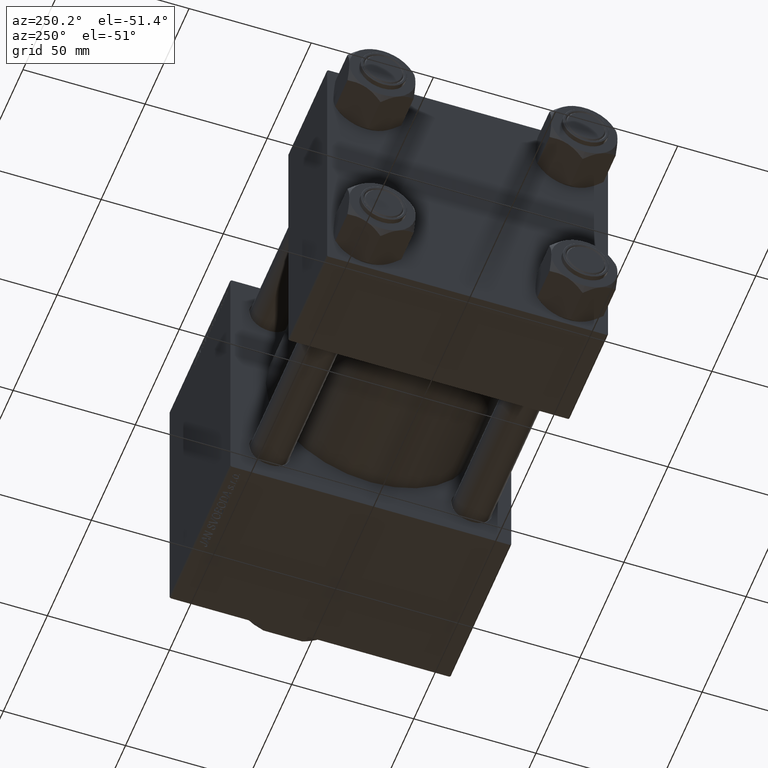
[diagram: clean part render]
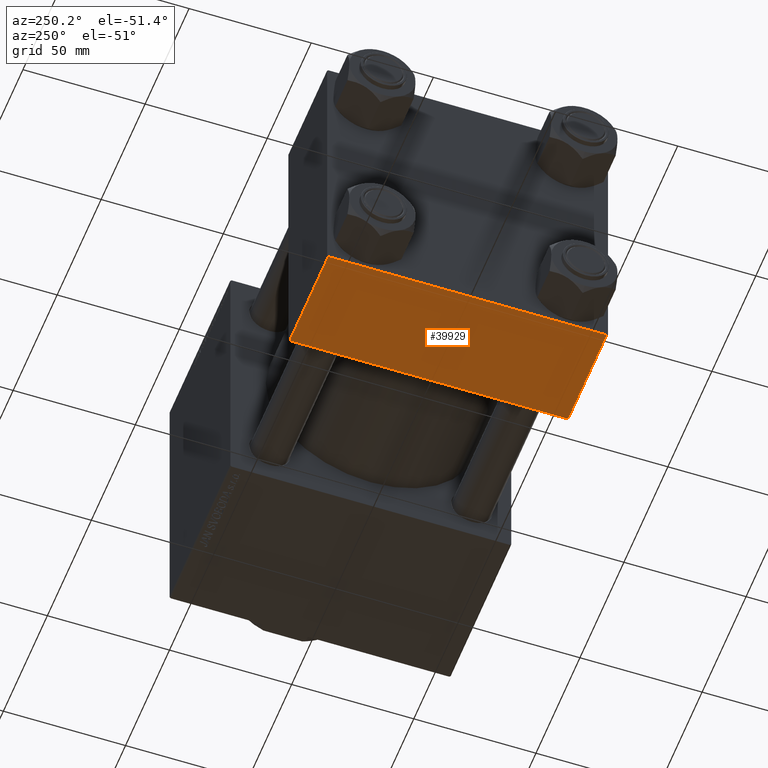
[diagram: same view with one face highlighted and labeled with its STEP entity id]
A machine part, auxiliary view. The second image highlights one B-rep face of the part: STEP entity #39929.
In plain terms, the highlighted planar face has unit normal (0, 0, -1).
Its self-contained STEP definition (entity closure, byte-faithful):
#2000 = EDGE_CURVE ( 'NONE', #11016, #6795, #43957, .T. ) ;
#3790 = ORIENTED_EDGE ( 'NONE', *, *, #41008, .T. ) ;
#6478 = CARTESIAN_POINT ( 'NONE',  ( 44.00000000000000000, 57.00000000000002132, -57.49999999999999289 ) ) ;
#6795 = VERTEX_POINT ( 'NONE', #34348 ) ;
#6999 = EDGE_LOOP ( 'NONE', ( #10839, #10000, #14763, #3790 ) ) ;
#7569 = LINE ( 'NONE', #46496, #48284 ) ;
#10000 = ORIENTED_EDGE ( 'NONE', *, *, #20668, .T. ) ;
#10839 = ORIENTED_EDGE ( 'NONE', *, *, #2000, .F. ) ;
#11016 = VERTEX_POINT ( 'NONE', #41307 ) ;
#11087 = VERTEX_POINT ( 'NONE', #6478 ) ;
#11786 = EDGE_CURVE ( 'NONE', #11087, #20165, #21580, .T. ) ;
#12984 = VECTOR ( 'NONE', #23990, 1000.000000000000000 ) ;
#13670 = PLANE ( 'NONE',  #21252 ) ;
#14763 = ORIENTED_EDGE ( 'NONE', *, *, #11786, .T. ) ;
#20165 = VERTEX_POINT ( 'NONE', #25180 ) ;
#20668 = EDGE_CURVE ( 'NONE', #11016, #11087, #22752, .T. ) ;
#21252 = AXIS2_PLACEMENT_3D ( 'NONE', #37225, #41057, #24950 ) ;
#21580 = LINE ( 'NONE', #47292, #30741 ) ;
#22752 = LINE ( 'NONE', #45798, #47248 ) ;
#23193 = DIRECTION ( 'NONE',  ( -1.000000000000000000, 0.000000000000000000, 0.000000000000000000 ) ) ;
#23990 = DIRECTION ( 'NONE',  ( 0.000000000000000000, -1.000000000000000000, -1.206764157201257045E-16 ) ) ;
#24950 = DIRECTION ( 'NONE',  ( 0.000000000000000000, 1.000000000000000000, 1.206764157201257045E-16 ) ) ;
#25180 = CARTESIAN_POINT ( 'NONE',  ( 44.00000000000000000, -57.00000000000000711, -57.50000000000000711 ) ) ;
#27590 = CARTESIAN_POINT ( 'NONE',  ( 0.000000000000000000, 57.49999999999999289, -57.49999999999999289 ) ) ;
#27843 = DIRECTION ( 'NONE',  ( 0.000000000000000000, -1.000000000000000000, -1.206764157201257045E-16 ) ) ;
#29291 = FACE_OUTER_BOUND ( 'NONE', #6999, .T. ) ;
#30741 = VECTOR ( 'NONE', #27843, 1000.000000000000000 ) ;
#34348 = CARTESIAN_POINT ( 'NONE',  ( 0.000000000000000000, -57.00000000000000711, -57.50000000000000711 ) ) ;
#37225 = CARTESIAN_POINT ( 'NONE',  ( 44.00000000000000000, 57.49999999999999289, -57.49999999999999289 ) ) ;
#39929 = ADVANCED_FACE ( 'NONE', ( #29291 ), #13670, .T. ) ;
#41008 = EDGE_CURVE ( 'NONE', #20165, #6795, #7569, .T. ) ;
#41057 = DIRECTION ( 'NONE',  ( 0.000000000000000000, 1.206764157201257045E-16, -1.000000000000000000 ) ) ;
#41307 = CARTESIAN_POINT ( 'NONE',  ( 0.000000000000000000, 57.00000000000002132, -57.49999999999999289 ) ) ;
#41950 = DIRECTION ( 'NONE',  ( 1.000000000000000000, 0.000000000000000000, 0.000000000000000000 ) ) ;
#43957 = LINE ( 'NONE', #27590, #12984 ) ;
#45798 = CARTESIAN_POINT ( 'NONE',  ( 44.00000000000000000, 57.00000000000002132, -57.49999999999999289 ) ) ;
#46496 = CARTESIAN_POINT ( 'NONE',  ( 0.000000000000000000, -57.00000000000000711, -57.50000000000000711 ) ) ;
#47248 = VECTOR ( 'NONE', #41950, 1000.000000000000000 ) ;
#47292 = CARTESIAN_POINT ( 'NONE',  ( 44.00000000000000000, 57.49999999999999289, -57.49999999999999289 ) ) ;
#48284 = VECTOR ( 'NONE', #23193, 1000.000000000000000 ) ;